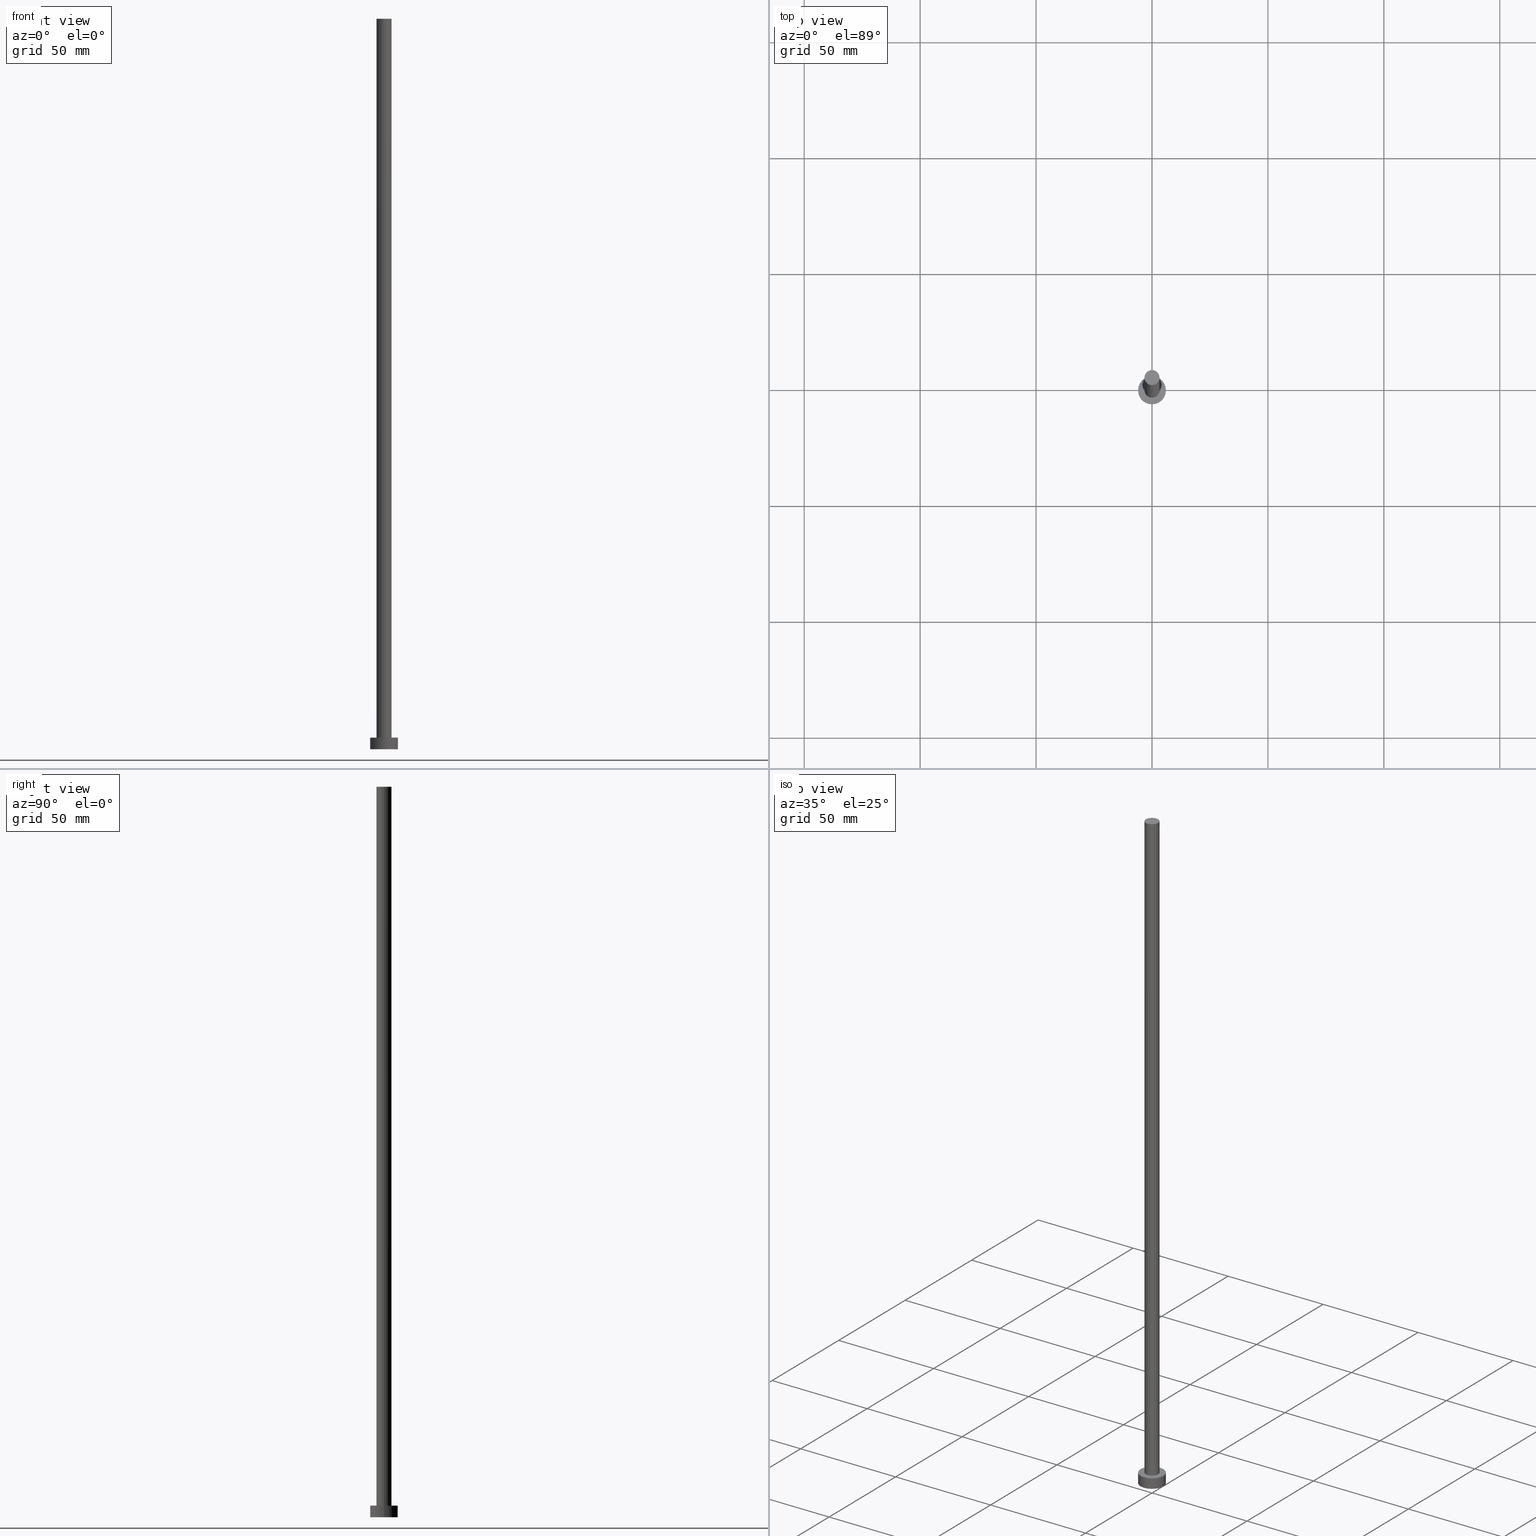
[diagram: canonical four-view strip — front | top / right | iso, engineering-drawing reading convention]
A machine part, canonical four-view strip (front | top / right | iso — engineering-drawing reading convention). The complete STEP part file that produces these views, byte-faithful:
ISO-10303-21;
HEADER;
FILE_DESCRIPTION (( 'STEP AP203' ),
    '1' );
FILE_NAME ('99e8.STEP',
    '2023-02-13T11:48:03',
    ( '' ),
    ( '' ),
    'SwSTEP 2.0',
    'SolidWorks 2019',
    '' );
FILE_SCHEMA (( 'CONFIG_CONTROL_DESIGN' ));
ENDSEC;

DATA;
#1 = COORDINATED_UNIVERSAL_TIME_OFFSET ( 1, 0, .AHEAD. ) ;
#2 = ADVANCED_FACE ( 'NONE', ( #175 ), #36, .T. ) ;
#3 = CARTESIAN_POINT ( 'NONE',  ( 6.000000000000000888, 7.347880794884120722E-16, 5.000000000000000000 ) ) ;
#4 = DIRECTION ( 'NONE',  ( 1.000000000000000000, 0.000000000000000000, 0.000000000000000000 ) ) ;
#5 = CIRCLE ( 'NONE', #64, 3.250000000000000444 ) ;
#6 = CIRCLE ( 'NONE', #157, 6.000000000000000888 ) ;
#7 = AXIS2_PLACEMENT_3D ( 'NONE', #12, #55, #196 ) ;
#8 = PERSON_AND_ORGANIZATION_ROLE ( 'design_supplier' ) ;
#9 = VERTEX_POINT ( 'NONE', #216 ) ;
#10 = ORIENTED_EDGE ( 'NONE', *, *, #229, .F. ) ;
#11 = VERTEX_POINT ( 'NONE', #159 ) ;
#12 = CARTESIAN_POINT ( 'NONE',  ( 0.000000000000000000, 0.000000000000000000, 5.000000000000000000 ) ) ;
#13 = CC_DESIGN_PERSON_AND_ORGANIZATION_ASSIGNMENT ( #183, #24, ( #237 ) ) ;
#14 = CARTESIAN_POINT ( 'NONE',  ( -6.000000000000000888, 0.000000000000000000, 0.000000000000000000 ) ) ;
#15 = DIRECTION ( 'NONE',  ( 1.000000000000000000, 0.000000000000000000, -0.000000000000000000 ) ) ;
#16 = DIRECTION ( 'NONE',  ( -0.000000000000000000, -0.000000000000000000, -1.000000000000000000 ) ) ;
#17 = CARTESIAN_POINT ( 'NONE',  ( -3.250000000000000444, 0.000000000000000000, 315.0000000000000000 ) ) ;
#18 = CALENDAR_DATE ( 2023, 13, 2 ) ;
#19 = CC_DESIGN_SECURITY_CLASSIFICATION ( #57, ( #182 ) ) ;
#20 = DIRECTION ( 'NONE',  ( 0.000000000000000000, 0.000000000000000000, 1.000000000000000000 ) ) ;
#21 = COORDINATED_UNIVERSAL_TIME_OFFSET ( 1, 0, .AHEAD. ) ;
#22 = DIRECTION ( 'NONE',  ( 1.000000000000000000, 0.000000000000000000, -0.000000000000000000 ) ) ;
#23 = CIRCLE ( 'NONE', #221, 6.000000000000000888 ) ;
#24 = PERSON_AND_ORGANIZATION_ROLE ( 'design_owner' ) ;
#25 = ORIENTED_EDGE ( 'NONE', *, *, #165, .T. ) ;
#26 = DATE_TIME_ROLE ( 'classification_date' ) ;
#27 = AXIS2_PLACEMENT_3D ( 'NONE', #53, #232, #119 ) ;
#28 = APPROVAL_PERSON_ORGANIZATION ( #111, #202, #174 ) ;
#29 = CC_DESIGN_PERSON_AND_ORGANIZATION_ASSIGNMENT ( #66, #130, ( #182 ) ) ;
#30 = ORIENTED_EDGE ( 'NONE', *, *, #74, .F. ) ;
#31 = ORIENTED_EDGE ( 'NONE', *, *, #229, .T. ) ;
#32 = CIRCLE ( 'NONE', #108, 6.000000000000000888 ) ;
#33 = ORGANIZATION ( 'NEUR�EN�', 'NEUR�EN�', '' ) ;
#34 = EDGE_CURVE ( 'NONE', #105, #51, #162, .T. ) ;
#35 = CARTESIAN_POINT ( 'NONE',  ( 0.000000000000000000, 0.000000000000000000, 315.0000000000000000 ) ) ;
#36 = CYLINDRICAL_SURFACE ( 'NONE', #102, 3.250000000000000444 ) ;
#37 = FACE_OUTER_BOUND ( 'NONE', #193, .T. ) ;
#38 = FACE_OUTER_BOUND ( 'NONE', #224, .T. ) ;
#39 = CC_DESIGN_PERSON_AND_ORGANIZATION_ASSIGNMENT ( #207, #226, ( #57 ) ) ;
#40 = PLANE ( 'NONE',  #231 ) ;
#41 = APPLICATION_CONTEXT ( 'configuration controlled 3d designs of mechanical parts and assemblies' ) ;
#42 = DATE_AND_TIME ( #147, #137 ) ;
#43 = PERSON_AND_ORGANIZATION ( #223, #33 ) ;
#44 = AXIS2_PLACEMENT_3D ( 'NONE', #140, #215, #218 ) ;
#45 = PRODUCT_DEFINITION ( 'NEZN�M�', '', #182, #185 ) ;
#46 = LINE ( 'NONE', #236, #168 ) ;
#47 = APPLICATION_PROTOCOL_DEFINITION ( 'international standard', 'config_control_design', 1994, #41 ) ;
#48 = CIRCLE ( 'NONE', #27, 3.250000000000000444 ) ;
#49 = PRODUCT_RELATED_PRODUCT_CATEGORY ( 'detail', '', ( #237 ) ) ;
#50 = ORIENTED_EDGE ( 'NONE', *, *, #143, .F. ) ;
#51 = VERTEX_POINT ( 'NONE', #14 ) ;
#52 = ORIENTED_EDGE ( 'NONE', *, *, #127, .T. ) ;
#53 = CARTESIAN_POINT ( 'NONE',  ( 0.000000000000000000, 0.000000000000000000, 315.0000000000000000 ) ) ;
#54 = DIRECTION ( 'NONE',  ( -0.000000000000000000, -0.000000000000000000, -1.000000000000000000 ) ) ;
#55 = DIRECTION ( 'NONE',  ( -0.000000000000000000, -0.000000000000000000, -1.000000000000000000 ) ) ;
#56 = DIRECTION ( 'NONE',  ( 1.000000000000000000, 0.000000000000000000, 0.000000000000000000 ) ) ;
#57 = SECURITY_CLASSIFICATION ( '', '', #134 ) ;
#58 = FACE_OUTER_BOUND ( 'NONE', #115, .T. ) ;
#59 = EDGE_CURVE ( 'NONE', #211, #11, #48, .T. ) ;
#60 = DATE_TIME_ROLE ( 'creation_date' ) ;
#61 =( LENGTH_UNIT ( ) NAMED_UNIT ( * ) SI_UNIT ( .MILLI., .METRE. ) );
#62 = VECTOR ( 'NONE', #54, 1000.000000000000000 ) ;
#63 = AXIS2_PLACEMENT_3D ( 'NONE', #158, #233, #15 ) ;
#64 = AXIS2_PLACEMENT_3D ( 'NONE', #76, #138, #56 ) ;
#65 = APPROVAL_DATE_TIME ( #192, #249 ) ;
#66 = PERSON_AND_ORGANIZATION ( #223, #33 ) ;
#67 = CC_DESIGN_DATE_AND_TIME_ASSIGNMENT ( #201, #60, ( #45 ) ) ;
#68 = CALENDAR_DATE ( 2023, 13, 2 ) ;
#69 = ORIENTED_EDGE ( 'NONE', *, *, #143, .T. ) ;
#70 = PLANE ( 'NONE',  #63 ) ;
#71 = AXIS2_PLACEMENT_3D ( 'NONE', #122, #160, #118 ) ;
#72 = AXIS2_PLACEMENT_3D ( 'NONE', #195, #16, #78 ) ;
#73 = LINE ( 'NONE', #17, #198 ) ;
#74 = EDGE_CURVE ( 'NONE', #228, #105, #86, .T. ) ;
#75 = DIRECTION ( 'NONE',  ( 0.000000000000000000, 0.000000000000000000, 1.000000000000000000 ) ) ;
#76 = CARTESIAN_POINT ( 'NONE',  ( 0.000000000000000000, 0.000000000000000000, 5.000000000000000000 ) ) ;
#77 = LOCAL_TIME ( 12, 48, 2.000000000000000000, #107 ) ;
#78 = DIRECTION ( 'NONE',  ( -1.000000000000000000, 0.000000000000000000, 0.000000000000000000 ) ) ;
#79 = EDGE_CURVE ( 'NONE', #211, #244, #73, .T. ) ;
#80 = PERSON_AND_ORGANIZATION ( #223, #33 ) ;
#81 = CALENDAR_DATE ( 2023, 13, 2 ) ;
#82 =( NAMED_UNIT ( * ) SI_UNIT ( $, .STERADIAN. ) SOLID_ANGLE_UNIT ( ) );
#83 = CC_DESIGN_PERSON_AND_ORGANIZATION_ASSIGNMENT ( #88, #8, ( #182 ) ) ;
#84 = MECHANICAL_CONTEXT ( 'NONE', #41, 'mechanical' ) ;
#85 = ORIENTED_EDGE ( 'NONE', *, *, #34, .F. ) ;
#86 = CIRCLE ( 'NONE', #167, 6.000000000000000888 ) ;
#87 = ADVANCED_FACE ( 'NONE', ( #253 ), #117, .T. ) ;
#88 = PERSON_AND_ORGANIZATION ( #223, #33 ) ;
#89 = ORIENTED_EDGE ( 'NONE', *, *, #154, .F. ) ;
#90 = ORIENTED_EDGE ( 'NONE', *, *, #74, .T. ) ;
#91 = EDGE_CURVE ( 'NONE', #51, #9, #23, .T. ) ;
#92 = DIRECTION ( 'NONE',  ( -0.000000000000000000, -0.000000000000000000, -1.000000000000000000 ) ) ;
#93 = DIRECTION ( 'NONE',  ( -0.000000000000000000, -0.000000000000000000, -1.000000000000000000 ) ) ;
#94 = ADVANCED_FACE ( 'NONE', ( #136 ), #177, .T. ) ;
#95 = CARTESIAN_POINT ( 'NONE',  ( 0.000000000000000000, 0.000000000000000000, 0.000000000000000000 ) ) ;
#96 = DIRECTION ( 'NONE',  ( -1.000000000000000000, 0.000000000000000000, 0.000000000000000000 ) ) ;
#97 = CARTESIAN_POINT ( 'NONE',  ( -6.000000000000000888, 0.000000000000000000, 5.000000000000000000 ) ) ;
#98 = CIRCLE ( 'NONE', #186, 3.250000000000000444 ) ;
#99 = APPROVAL_STATUS ( 'not_yet_approved' ) ;
#100 = APPLICATION_PROTOCOL_DEFINITION ( 'international standard', 'config_control_design', 1994, #214 ) ;
#101 = CARTESIAN_POINT ( 'NONE',  ( -3.250000000000000444, 0.000000000000000000, 5.000000000000000000 ) ) ;
#102 = AXIS2_PLACEMENT_3D ( 'NONE', #35, #252, #180 ) ;
#103 = AXIS2_PLACEMENT_3D ( 'NONE', #126, #146, #4 ) ;
#104 = COORDINATED_UNIVERSAL_TIME_OFFSET ( 1, 0, .AHEAD. ) ;
#105 = VERTEX_POINT ( 'NONE', #97 ) ;
#106 = ADVANCED_FACE ( 'NONE', ( #58 ), #212, .T. ) ;
#107 = COORDINATED_UNIVERSAL_TIME_OFFSET ( 1, 0, .AHEAD. ) ;
#108 = AXIS2_PLACEMENT_3D ( 'NONE', #176, #155, #139 ) ;
#109 = ORIENTED_EDGE ( 'NONE', *, *, #246, .F. ) ;
#110 = CC_DESIGN_APPROVAL ( #249, ( #182 ) ) ;
#111 = PERSON_AND_ORGANIZATION ( #223, #33 ) ;
#112 = ORIENTED_EDGE ( 'NONE', *, *, #79, .F. ) ;
#113 = ADVANCED_BREP_SHAPE_REPRESENTATION ( '99e8', ( #156, #103 ), #141 ) ;
#114 = APPROVAL_DATE_TIME ( #242, #202 ) ;
#115 = EDGE_LOOP ( 'NONE', ( #153, #247, #135, #172 ) ) ;
#116 = EDGE_LOOP ( 'NONE', ( #89, #191 ) ) ;
#117 = CYLINDRICAL_SURFACE ( 'NONE', #72, 6.000000000000000888 ) ;
#118 = DIRECTION ( 'NONE',  ( 1.000000000000000000, 0.000000000000000000, -0.000000000000000000 ) ) ;
#119 = DIRECTION ( 'NONE',  ( 1.000000000000000000, 0.000000000000000000, 0.000000000000000000 ) ) ;
#120 = PRODUCT_DEFINITION_SHAPE ( 'NONE', 'NONE',  #45 ) ;
#121 = APPROVAL_PERSON_ORGANIZATION ( #80, #241, #124 ) ;
#122 = CARTESIAN_POINT ( 'NONE',  ( 0.000000000000000000, 0.000000000000000000, 0.000000000000000000 ) ) ;
#123 = DIRECTION ( 'NONE',  ( -0.000000000000000000, -0.000000000000000000, -1.000000000000000000 ) ) ;
#124 = APPROVAL_ROLE ( '' ) ;
#125 =( NAMED_UNIT ( * ) PLANE_ANGLE_UNIT ( ) SI_UNIT ( $, .RADIAN. ) );
#126 = CARTESIAN_POINT ( 'NONE',  ( 0.000000000000000000, 0.000000000000000000, 0.000000000000000000 ) ) ;
#127 = EDGE_CURVE ( 'NONE', #105, #228, #32, .T. ) ;
#128 = CARTESIAN_POINT ( 'NONE',  ( 0.000000000000000000, 0.000000000000000000, 0.000000000000000000 ) ) ;
#129 = APPROVAL_DATE_TIME ( #42, #241 ) ;
#130 = PERSON_AND_ORGANIZATION_ROLE ( 'creator' ) ;
#131 = ADVANCED_FACE ( 'NONE', ( #37 ), #70, .T. ) ;
#132 = CALENDAR_DATE ( 2023, 13, 2 ) ;
#133 = ORIENTED_EDGE ( 'NONE', *, *, #127, .F. ) ;
#134 = SECURITY_CLASSIFICATION_LEVEL ( 'unclassified' ) ;
#135 = ORIENTED_EDGE ( 'NONE', *, *, #79, .T. ) ;
#136 = FACE_OUTER_BOUND ( 'NONE', #208, .T. ) ;
#137 = LOCAL_TIME ( 12, 48, 2.000000000000000000, #21 ) ;
#138 = DIRECTION ( 'NONE',  ( 0.000000000000000000, 0.000000000000000000, 1.000000000000000000 ) ) ;
#139 = DIRECTION ( 'NONE',  ( 1.000000000000000000, 0.000000000000000000, 0.000000000000000000 ) ) ;
#140 = CARTESIAN_POINT ( 'NONE',  ( 0.000000000000000000, 0.000000000000000000, 5.000000000000000000 ) ) ;
#141 =( GEOMETRIC_REPRESENTATION_CONTEXT ( 3 ) GLOBAL_UNCERTAINTY_ASSIGNED_CONTEXT ( ( #164 ) ) GLOBAL_UNIT_ASSIGNED_CONTEXT ( ( #61, #125, #82 ) ) REPRESENTATION_CONTEXT ( 'NONE', 'WORKASPACE' ) );
#142 = FACE_BOUND ( 'NONE', #116, .T. ) ;
#143 = EDGE_CURVE ( 'NONE', #228, #9, #178, .T. ) ;
#144 = APPROVAL_STATUS ( 'not_yet_approved' ) ;
#145 = LOCAL_TIME ( 12, 48, 2.000000000000000000, #1 ) ;
#146 = DIRECTION ( 'NONE',  ( 0.000000000000000000, 0.000000000000000000, 1.000000000000000000 ) ) ;
#147 = CALENDAR_DATE ( 2023, 13, 2 ) ;
#148 = DIRECTION ( 'NONE',  ( -0.000000000000000000, -0.000000000000000000, -1.000000000000000000 ) ) ;
#149 = CIRCLE ( 'NONE', #44, 3.250000000000000444 ) ;
#150 = ORIENTED_EDGE ( 'NONE', *, *, #91, .F. ) ;
#151 = COORDINATED_UNIVERSAL_TIME_OFFSET ( 1, 0, .AHEAD. ) ;
#152 = ORIENTED_EDGE ( 'NONE', *, *, #220, .T. ) ;
#153 = ORIENTED_EDGE ( 'NONE', *, *, #220, .F. ) ;
#154 = EDGE_CURVE ( 'NONE', #244, #230, #5, .T. ) ;
#155 = DIRECTION ( 'NONE',  ( 0.000000000000000000, 0.000000000000000000, 1.000000000000000000 ) ) ;
#156 = MANIFOLD_SOLID_BREP ( 'P�idat vysunut�m3', #181 ) ;
#157 = AXIS2_PLACEMENT_3D ( 'NONE', #128, #163, #238 ) ;
#158 = CARTESIAN_POINT ( 'NONE',  ( 0.000000000000000000, 0.000000000000000000, 315.0000000000000000 ) ) ;
#159 = CARTESIAN_POINT ( 'NONE',  ( 3.250000000000000444, 3.980102097228898231E-16, 315.0000000000000000 ) ) ;
#160 = DIRECTION ( 'NONE',  ( 0.000000000000000000, 0.000000000000000000, 1.000000000000000000 ) ) ;
#161 = VECTOR ( 'NONE', #123, 1000.000000000000000 ) ;
#162 = LINE ( 'NONE', #255, #161 ) ;
#163 = DIRECTION ( 'NONE',  ( 0.000000000000000000, 0.000000000000000000, 1.000000000000000000 ) ) ;
#164 = UNCERTAINTY_MEASURE_WITH_UNIT (LENGTH_MEASURE( 1.000000000000000082E-05 ), #61, 'distance_accuracy_value', 'NONE');
#165 = EDGE_CURVE ( 'NONE', #230, #244, #149, .T. ) ;
#166 = DIRECTION ( 'NONE',  ( 0.000000000000000000, 0.000000000000000000, 1.000000000000000000 ) ) ;
#167 = AXIS2_PLACEMENT_3D ( 'NONE', #235, #75, #248 ) ;
#168 = VECTOR ( 'NONE', #148, 1000.000000000000000 ) ;
#169 = PERSON_AND_ORGANIZATION ( #223, #33 ) ;
#170 = DIRECTION ( 'NONE',  ( 1.000000000000000000, 0.000000000000000000, 0.000000000000000000 ) ) ;
#171 = DATE_AND_TIME ( #68, #251 ) ;
#172 = ORIENTED_EDGE ( 'NONE', *, *, #154, .T. ) ;
#173 = ADVANCED_FACE ( 'NONE', ( #38 ), #200, .F. ) ;
#174 = APPROVAL_ROLE ( '' ) ;
#175 = FACE_OUTER_BOUND ( 'NONE', #188, .T. ) ;
#176 = CARTESIAN_POINT ( 'NONE',  ( 0.000000000000000000, 0.000000000000000000, 5.000000000000000000 ) ) ;
#177 = CYLINDRICAL_SURFACE ( 'NONE', #7, 6.000000000000000888 ) ;
#178 = LINE ( 'NONE', #179, #62 ) ;
#179 = CARTESIAN_POINT ( 'NONE',  ( 6.000000000000000888, 7.347880794884120722E-16, 5.000000000000000000 ) ) ;
#180 = DIRECTION ( 'NONE',  ( -1.000000000000000000, 0.000000000000000000, 0.000000000000000000 ) ) ;
#181 = CLOSED_SHELL ( 'NONE', ( #2, #87, #94, #217, #173, #106, #131 ) ) ;
#182 = PRODUCT_DEFINITION_FORMATION_WITH_SPECIFIED_SOURCE ( 'LIBOVOLN�', '', #237, .NOT_KNOWN. ) ;
#183 = PERSON_AND_ORGANIZATION ( #223, #33 ) ;
#184 = APPROVAL_ROLE ( '' ) ;
#185 = DESIGN_CONTEXT ( 'detailed design', #214, 'design' ) ;
#186 = AXIS2_PLACEMENT_3D ( 'NONE', #204, #20, #170 ) ;
#187 = PERSON_AND_ORGANIZATION_ROLE ( 'creator' ) ;
#188 = EDGE_LOOP ( 'NONE', ( #10, #152, #25, #112 ) ) ;
#189 = CC_DESIGN_APPROVAL ( #241, ( #45 ) ) ;
#190 = SHAPE_DEFINITION_REPRESENTATION ( #120, #113 ) ;
#191 = ORIENTED_EDGE ( 'NONE', *, *, #165, .F. ) ;
#192 = DATE_AND_TIME ( #81, #145 ) ;
#193 = EDGE_LOOP ( 'NONE', ( #206, #31 ) ) ;
#194 = ORIENTED_EDGE ( 'NONE', *, *, #91, .T. ) ;
#195 = CARTESIAN_POINT ( 'NONE',  ( 0.000000000000000000, 0.000000000000000000, 5.000000000000000000 ) ) ;
#196 = DIRECTION ( 'NONE',  ( -1.000000000000000000, 0.000000000000000000, 0.000000000000000000 ) ) ;
#197 = DIRECTION ( 'NONE',  ( 0.000000000000000000, 0.000000000000000000, 1.000000000000000000 ) ) ;
#198 = VECTOR ( 'NONE', #93, 1000.000000000000000 ) ;
#199 = DIRECTION ( 'NONE',  ( 1.000000000000000000, 0.000000000000000000, 0.000000000000000000 ) ) ;
#200 = PLANE ( 'NONE',  #71 ) ;
#201 = DATE_AND_TIME ( #18, #203 ) ;
#202 = APPROVAL ( #227, 'NEUR�EN�' ) ;
#203 = LOCAL_TIME ( 12, 48, 2.000000000000000000, #104 ) ;
#204 = CARTESIAN_POINT ( 'NONE',  ( 0.000000000000000000, 0.000000000000000000, 315.0000000000000000 ) ) ;
#205 = CARTESIAN_POINT ( 'NONE',  ( 0.000000000000000000, 0.000000000000000000, 5.000000000000000000 ) ) ;
#206 = ORIENTED_EDGE ( 'NONE', *, *, #59, .T. ) ;
#207 = PERSON_AND_ORGANIZATION ( #223, #33 ) ;
#208 = EDGE_LOOP ( 'NONE', ( #50, #133, #210, #194 ) ) ;
#209 = CC_DESIGN_PERSON_AND_ORGANIZATION_ASSIGNMENT ( #169, #187, ( #45 ) ) ;
#210 = ORIENTED_EDGE ( 'NONE', *, *, #34, .T. ) ;
#211 = VERTEX_POINT ( 'NONE', #254 ) ;
#212 = CYLINDRICAL_SURFACE ( 'NONE', #250, 3.250000000000000444 ) ;
#213 = CC_DESIGN_APPROVAL ( #202, ( #57 ) ) ;
#214 = APPLICATION_CONTEXT ( 'configuration controlled 3d designs of mechanical parts and assemblies' ) ;
#215 = DIRECTION ( 'NONE',  ( 0.000000000000000000, 0.000000000000000000, 1.000000000000000000 ) ) ;
#216 = CARTESIAN_POINT ( 'NONE',  ( 6.000000000000000888, 7.347880794884120722E-16, 0.000000000000000000 ) ) ;
#217 = ADVANCED_FACE ( 'NONE', ( #142, #219 ), #40, .T. ) ;
#218 = DIRECTION ( 'NONE',  ( 1.000000000000000000, 0.000000000000000000, 0.000000000000000000 ) ) ;
#219 = FACE_OUTER_BOUND ( 'NONE', #225, .T. ) ;
#220 = EDGE_CURVE ( 'NONE', #11, #230, #46, .T. ) ;
#221 = AXIS2_PLACEMENT_3D ( 'NONE', #95, #197, #199 ) ;
#222 = APPROVAL_PERSON_ORGANIZATION ( #43, #249, #184 ) ;
#223 = PERSON ( 'NEUR�EN�', 'NEUR�EN�', 'NEUR�EN�', ('NEUR�EN�'), ('NEUR�EN�'), ('NEUR�EN�') ) ;
#224 = EDGE_LOOP ( 'NONE', ( #150, #109 ) ) ;
#225 = EDGE_LOOP ( 'NONE', ( #52, #90 ) ) ;
#226 = PERSON_AND_ORGANIZATION_ROLE ( 'classification_officer' ) ;
#227 = APPROVAL_STATUS ( 'not_yet_approved' ) ;
#228 = VERTEX_POINT ( 'NONE', #3 ) ;
#229 = EDGE_CURVE ( 'NONE', #11, #211, #98, .T. ) ;
#230 = VERTEX_POINT ( 'NONE', #240 ) ;
#231 = AXIS2_PLACEMENT_3D ( 'NONE', #205, #166, #22 ) ;
#232 = DIRECTION ( 'NONE',  ( 0.000000000000000000, 0.000000000000000000, 1.000000000000000000 ) ) ;
#233 = DIRECTION ( 'NONE',  ( 0.000000000000000000, 0.000000000000000000, 1.000000000000000000 ) ) ;
#234 = CARTESIAN_POINT ( 'NONE',  ( 0.000000000000000000, 0.000000000000000000, 315.0000000000000000 ) ) ;
#235 = CARTESIAN_POINT ( 'NONE',  ( 0.000000000000000000, 0.000000000000000000, 5.000000000000000000 ) ) ;
#236 = CARTESIAN_POINT ( 'NONE',  ( 3.250000000000000444, 3.980102097228898231E-16, 315.0000000000000000 ) ) ;
#237 = PRODUCT ( '99e8', '99e8', '', ( #84 ) ) ;
#238 = DIRECTION ( 'NONE',  ( 1.000000000000000000, 0.000000000000000000, 0.000000000000000000 ) ) ;
#239 = CC_DESIGN_DATE_AND_TIME_ASSIGNMENT ( #171, #26, ( #57 ) ) ;
#240 = CARTESIAN_POINT ( 'NONE',  ( 3.250000000000000444, 3.980102097228898231E-16, 5.000000000000000000 ) ) ;
#241 = APPROVAL ( #144, 'NEUR�EN�' ) ;
#242 = DATE_AND_TIME ( #132, #77 ) ;
#243 = EDGE_LOOP ( 'NONE', ( #30, #69, #245, #85 ) ) ;
#244 = VERTEX_POINT ( 'NONE', #101 ) ;
#245 = ORIENTED_EDGE ( 'NONE', *, *, #246, .T. ) ;
#246 = EDGE_CURVE ( 'NONE', #9, #51, #6, .T. ) ;
#247 = ORIENTED_EDGE ( 'NONE', *, *, #59, .F. ) ;
#248 = DIRECTION ( 'NONE',  ( 1.000000000000000000, 0.000000000000000000, 0.000000000000000000 ) ) ;
#249 = APPROVAL ( #99, 'NEUR�EN�' ) ;
#250 = AXIS2_PLACEMENT_3D ( 'NONE', #234, #92, #96 ) ;
#251 = LOCAL_TIME ( 12, 48, 2.000000000000000000, #151 ) ;
#252 = DIRECTION ( 'NONE',  ( -0.000000000000000000, -0.000000000000000000, -1.000000000000000000 ) ) ;
#253 = FACE_OUTER_BOUND ( 'NONE', #243, .T. ) ;
#254 = CARTESIAN_POINT ( 'NONE',  ( -3.250000000000000444, 0.000000000000000000, 315.0000000000000000 ) ) ;
#255 = CARTESIAN_POINT ( 'NONE',  ( -6.000000000000000888, 0.000000000000000000, 5.000000000000000000 ) ) ;
ENDSEC;
END-ISO-10303-21;
